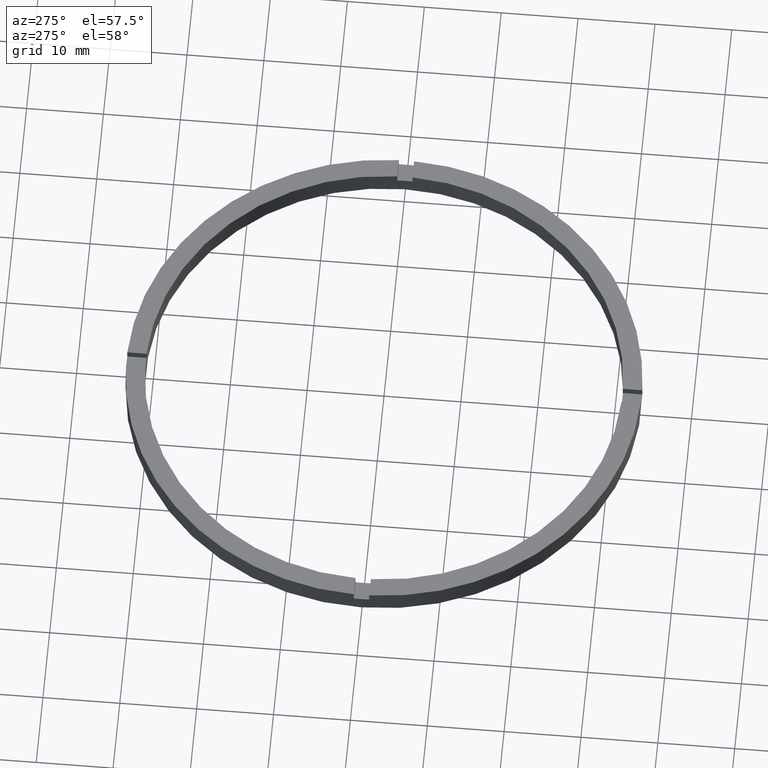
[diagram: clean part render]
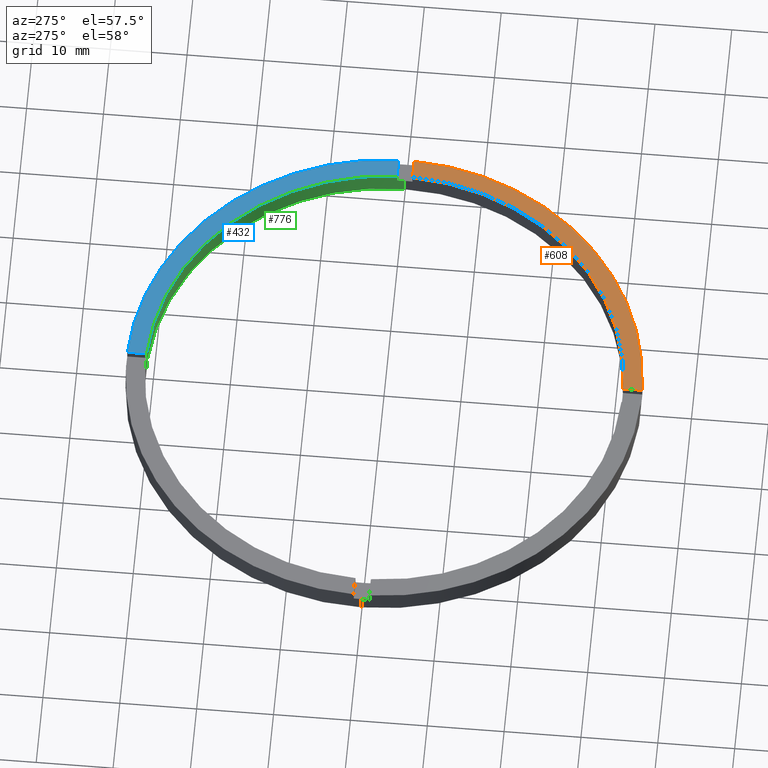
[diagram: same view with three faces highlighted in distinct colors, each labeled with its STEP entity id]
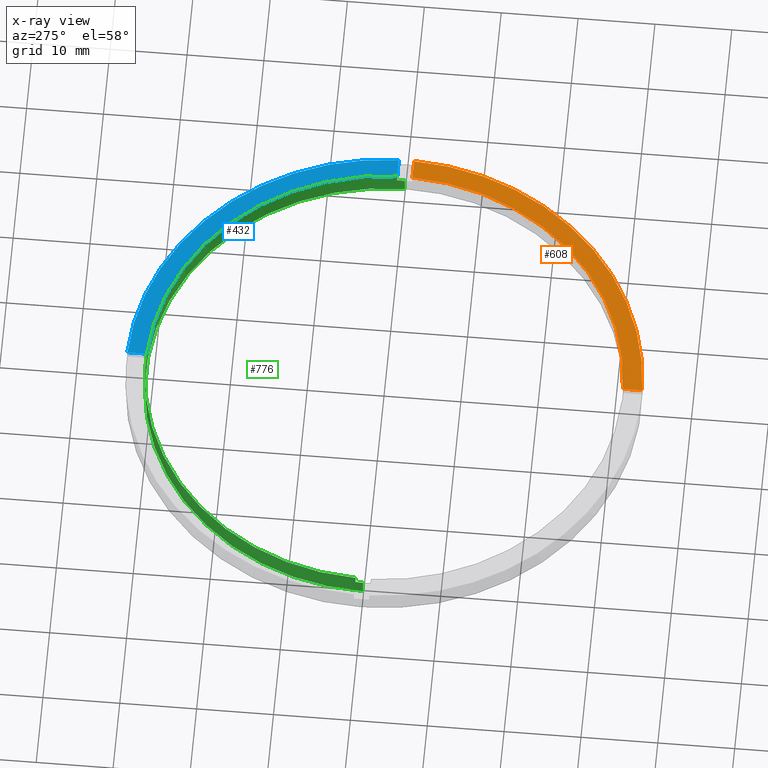
[diagram: x-ray of the same camera — body ghosted, the three highlighted faces saturated]
A machine part, auxiliary view with three faces highlighted in distinct colors.
The next image is the same camera in x-ray (body ghosted, the three faces saturated) — at least one of them is partly hidden behind the body in this view.
Their STEP definitions:

[orange] entity #608 — the highlighted planar face has unit normal (0, 0, 1).
#2 = AXIS2_PLACEMENT_3D ( 'NONE', #455, #492, #459 ) ;
#19 = VERTEX_POINT ( 'NONE', #437 ) ;
#33 = VERTEX_POINT ( 'NONE', #180 ) ;
#42 = LINE ( 'NONE', #249, #68 ) ;
#65 = LINE ( 'NONE', #540, #706 ) ;
#68 = VECTOR ( 'NONE', #466, 1000.000000000000000 ) ;
#85 = DIRECTION ( 'NONE',  ( -1.301042606982605074E-16, 1.000000000000000000, -0.000000000000000000 ) ) ;
#90 = AXIS2_PLACEMENT_3D ( 'NONE', #257, #553, #172 ) ;
#119 = VERTEX_POINT ( 'NONE', #275 ) ;
#122 = ORIENTED_EDGE ( 'NONE', *, *, #206, .F. ) ;
#149 = CIRCLE ( 'NONE', #612, 31.00000000000000000 ) ;
#172 = DIRECTION ( 'NONE',  ( 1.000000000000000000, 0.000000000000000000, 0.000000000000000000 ) ) ;
#180 = CARTESIAN_POINT ( 'NONE',  ( 33.48507130050644065, -1.000000000000158318, 3.000000000000000000 ) ) ;
#183 = EDGE_CURVE ( 'NONE', #119, #33, #396, .T. ) ;
#206 = EDGE_CURVE ( 'NONE', #305, #33, #42, .T. ) ;
#216 = CARTESIAN_POINT ( 'NONE',  ( 0.000000000000000000, 0.000000000000000000, 3.000000000000000000 ) ) ;
#237 = CARTESIAN_POINT ( 'NONE',  ( 30.98386676965932907, -1.000000000000158540, 3.000000000000000000 ) ) ;
#249 = CARTESIAN_POINT ( 'NONE',  ( 23.49999999999999289, -1.000000000000158984, 3.000000000000000000 ) ) ;
#256 = FACE_OUTER_BOUND ( 'NONE', #405, .T. ) ;
#257 = CARTESIAN_POINT ( 'NONE',  ( 0.000000000000000000, 0.000000000000000000, 3.000000000000000000 ) ) ;
#275 = CARTESIAN_POINT ( 'NONE',  ( 0.9999999999998391287, -33.48507130050644776, 3.000000000000000000 ) ) ;
#305 = VERTEX_POINT ( 'NONE', #237 ) ;
#337 = DIRECTION ( 'NONE',  ( 0.000000000000000000, 0.000000000000000000, 1.000000000000000000 ) ) ;
#351 = EDGE_CURVE ( 'NONE', #119, #19, #65, .T. ) ;
#396 = CIRCLE ( 'NONE', #90, 33.50000000000000000 ) ;
#404 = PLANE ( 'NONE',  #2 ) ;
#405 = EDGE_LOOP ( 'NONE', ( #122, #409, #410, #600 ) ) ;
#409 = ORIENTED_EDGE ( 'NONE', *, *, #467, .F. ) ;
#410 = ORIENTED_EDGE ( 'NONE', *, *, #351, .F. ) ;
#437 = CARTESIAN_POINT ( 'NONE',  ( 0.9999999999998389066, -30.98386676965933972, 3.000000000000000000 ) ) ;
#455 = CARTESIAN_POINT ( 'NONE',  ( 0.000000000000000000, 0.000000000000000000, 3.000000000000000000 ) ) ;
#459 = DIRECTION ( 'NONE',  ( 1.000000000000000000, 0.000000000000000000, -0.000000000000000000 ) ) ;
#466 = DIRECTION ( 'NONE',  ( 1.000000000000000000, 6.505213034913025371E-17, 0.000000000000000000 ) ) ;
#467 = EDGE_CURVE ( 'NONE', #19, #305, #149, .T. ) ;
#492 = DIRECTION ( 'NONE',  ( 0.000000000000000000, 0.000000000000000000, 1.000000000000000000 ) ) ;
#507 = DIRECTION ( 'NONE',  ( 1.000000000000000000, 0.000000000000000000, 0.000000000000000000 ) ) ;
#540 = CARTESIAN_POINT ( 'NONE',  ( 0.9999999999998377964, -23.50000000000018119, 3.000000000000000000 ) ) ;
#553 = DIRECTION ( 'NONE',  ( 0.000000000000000000, 0.000000000000000000, 1.000000000000000000 ) ) ;
#600 = ORIENTED_EDGE ( 'NONE', *, *, #183, .T. ) ;
#608 = ADVANCED_FACE ( 'NONE', ( #256 ), #404, .T. ) ;
#612 = AXIS2_PLACEMENT_3D ( 'NONE', #216, #337, #507 ) ;
#706 = VECTOR ( 'NONE', #85, 1000.000000000000000 ) ;

[blue] entity #432 — the highlighted planar face has unit normal (0, 0, 1).
#12 = CARTESIAN_POINT ( 'NONE',  ( 0.000000000000000000, 0.000000000000000000, 3.000000000000000000 ) ) ;
#40 = AXIS2_PLACEMENT_3D ( 'NONE', #116, #269, #658 ) ;
#53 = CARTESIAN_POINT ( 'NONE',  ( 23.49999999999999289, 0.9999999999998411271, 3.000000000000000000 ) ) ;
#54 = VERTEX_POINT ( 'NONE', #666 ) ;
#78 = EDGE_CURVE ( 'NONE', #460, #581, #650, .T. ) ;
#102 = VECTOR ( 'NONE', #220, 1000.000000000000000 ) ;
#106 = EDGE_CURVE ( 'NONE', #54, #281, #389, .T. ) ;
#116 = CARTESIAN_POINT ( 'NONE',  ( 0.000000000000000000, 0.000000000000000000, 3.000000000000000000 ) ) ;
#118 = ORIENTED_EDGE ( 'NONE', *, *, #677, .T. ) ;
#137 = VECTOR ( 'NONE', #263, 1000.000000000000000 ) ;
#143 = DIRECTION ( 'NONE',  ( 1.000000000000000000, 0.000000000000000000, -0.000000000000000000 ) ) ;
#158 = CARTESIAN_POINT ( 'NONE',  ( 33.48507130050644776, 0.9999999999998416822, 3.000000000000000000 ) ) ;
#218 = CARTESIAN_POINT ( 'NONE',  ( 0.000000000000000000, 0.000000000000000000, 3.000000000000000000 ) ) ;
#220 = DIRECTION ( 'NONE',  ( -1.000000000000000000, -6.505213034913025371E-17, -0.000000000000000000 ) ) ;
#239 = PLANE ( 'NONE',  #741 ) ;
#245 = CARTESIAN_POINT ( 'NONE',  ( 30.98386676965933972, 0.9999999999998414602, 3.000000000000000000 ) ) ;
#263 = DIRECTION ( 'NONE',  ( 0.000000000000000000, 1.000000000000000000, 0.000000000000000000 ) ) ;
#269 = DIRECTION ( 'NONE',  ( 0.000000000000000000, 0.000000000000000000, 1.000000000000000000 ) ) ;
#281 = VERTEX_POINT ( 'NONE', #598 ) ;
#363 = ORIENTED_EDGE ( 'NONE', *, *, #106, .F. ) ;
#389 = LINE ( 'NONE', #710, #137 ) ;
#432 = ADVANCED_FACE ( 'NONE', ( #496 ), #239, .T. ) ;
#460 = VERTEX_POINT ( 'NONE', #158 ) ;
#462 = EDGE_LOOP ( 'NONE', ( #363, #712, #626, #118 ) ) ;
#496 = FACE_OUTER_BOUND ( 'NONE', #462, .T. ) ;
#513 = DIRECTION ( 'NONE',  ( 0.000000000000000000, 0.000000000000000000, 1.000000000000000000 ) ) ;
#532 = CIRCLE ( 'NONE', #40, 33.50000000000000000 ) ;
#581 = VERTEX_POINT ( 'NONE', #245 ) ;
#591 = DIRECTION ( 'NONE',  ( 1.000000000000000000, 0.000000000000000000, 0.000000000000000000 ) ) ;
#598 = CARTESIAN_POINT ( 'NONE',  ( 0.9999999999999753530, 33.48507130050644776, 3.000000000000000000 ) ) ;
#618 = AXIS2_PLACEMENT_3D ( 'NONE', #218, #513, #591 ) ;
#626 = ORIENTED_EDGE ( 'NONE', *, *, #78, .F. ) ;
#650 = LINE ( 'NONE', #53, #102 ) ;
#658 = DIRECTION ( 'NONE',  ( 1.000000000000000000, 0.000000000000000000, 0.000000000000000000 ) ) ;
#666 = CARTESIAN_POINT ( 'NONE',  ( 0.9999999999999753530, 30.98386676965933617, 3.000000000000000000 ) ) ;
#676 = EDGE_CURVE ( 'NONE', #581, #54, #779, .T. ) ;
#677 = EDGE_CURVE ( 'NONE', #460, #281, #532, .T. ) ;
#710 = CARTESIAN_POINT ( 'NONE',  ( 0.9999999999999753530, 23.50000000000000000, 3.000000000000000000 ) ) ;
#712 = ORIENTED_EDGE ( 'NONE', *, *, #676, .F. ) ;
#731 = DIRECTION ( 'NONE',  ( 0.000000000000000000, 0.000000000000000000, 1.000000000000000000 ) ) ;
#741 = AXIS2_PLACEMENT_3D ( 'NONE', #12, #731, #143 ) ;
#779 = CIRCLE ( 'NONE', #618, 31.00000000000000000 ) ;

[green] entity #776 — the highlighted cylindrical surface (partial cylindrical patch) has radius 31 mm, axis along (-0, -0, -1).
#5 = CARTESIAN_POINT ( 'NONE',  ( 31.00000000000000000, 3.796405077356795115E-15, 3.000000000000000000 ) ) ;
#9 = DIRECTION ( 'NONE',  ( 0.000000000000000000, 0.000000000000000000, 1.000000000000000000 ) ) ;
#23 = ORIENTED_EDGE ( 'NONE', *, *, #121, .F. ) ;
#51 = AXIS2_PLACEMENT_3D ( 'NONE', #498, #468, #560 ) ;
#54 = VERTEX_POINT ( 'NONE', #666 ) ;
#61 = ORIENTED_EDGE ( 'NONE', *, *, #217, .T. ) ;
#70 = EDGE_CURVE ( 'NONE', #407, #558, #101, .T. ) ;
#72 = DIRECTION ( 'NONE',  ( 0.000000000000000000, -0.000000000000000000, 1.000000000000000000 ) ) ;
#82 = ORIENTED_EDGE ( 'NONE', *, *, #676, .T. ) ;
#86 = ORIENTED_EDGE ( 'NONE', *, *, #489, .F. ) ;
#92 = CARTESIAN_POINT ( 'NONE',  ( 0.9999999999999753530, 30.98386676965933617, 2.000000000000000000 ) ) ;
#97 = CARTESIAN_POINT ( 'NONE',  ( 30.98386676965933972, 0.9999999999998414602, 2.000000000000000000 ) ) ;
#101 = LINE ( 'NONE', #719, #382 ) ;
#104 = CARTESIAN_POINT ( 'NONE',  ( -30.98386676965933617, 0.9999999999999740208, 3.000000000000000000 ) ) ;
#110 = VERTEX_POINT ( 'NONE', #282 ) ;
#121 = EDGE_CURVE ( 'NONE', #633, #54, #359, .T. ) ;
#124 = CARTESIAN_POINT ( 'NONE',  ( 0.000000000000000000, 0.000000000000000000, 3.000000000000000000 ) ) ;
#128 = VERTEX_POINT ( 'NONE', #469 ) ;
#132 = VERTEX_POINT ( 'NONE', #586 ) ;
#139 = VECTOR ( 'NONE', #655, 1000.000000000000000 ) ;
#151 = ORIENTED_EDGE ( 'NONE', *, *, #212, .T. ) ;
#154 = VERTEX_POINT ( 'NONE', #594 ) ;
#174 = DIRECTION ( 'NONE',  ( 0.000000000000000000, 0.000000000000000000, 1.000000000000000000 ) ) ;
#179 = CARTESIAN_POINT ( 'NONE',  ( 0.9999999999999753530, 30.98386676965933617, 3.000000000000000000 ) ) ;
#190 = EDGE_CURVE ( 'NONE', #128, #110, #418, .T. ) ;
#196 = VERTEX_POINT ( 'NONE', #211 ) ;
#208 = CARTESIAN_POINT ( 'NONE',  ( 30.98386676965933972, 0.9999999999998414602, 3.000000000000000000 ) ) ;
#211 = CARTESIAN_POINT ( 'NONE',  ( 31.00000000000000000, 3.796405077356795115E-15, 0.000000000000000000 ) ) ;
#212 = EDGE_CURVE ( 'NONE', #402, #559, #323, .T. ) ;
#217 = EDGE_CURVE ( 'NONE', #154, #407, #316, .T. ) ;
#218 = CARTESIAN_POINT ( 'NONE',  ( 0.000000000000000000, 0.000000000000000000, 3.000000000000000000 ) ) ;
#228 = DIRECTION ( 'NONE',  ( 1.000000000000000000, 0.000000000000000000, 0.000000000000000000 ) ) ;
#233 = VECTOR ( 'NONE', #738, 1000.000000000000000 ) ;
#238 = DIRECTION ( 'NONE',  ( -0.000000000000000000, -0.000000000000000000, -1.000000000000000000 ) ) ;
#242 = DIRECTION ( 'NONE',  ( -0.000000000000000000, -0.000000000000000000, -1.000000000000000000 ) ) ;
#245 = CARTESIAN_POINT ( 'NONE',  ( 30.98386676965933972, 0.9999999999998414602, 3.000000000000000000 ) ) ;
#254 = CYLINDRICAL_SURFACE ( 'NONE', #381, 31.00000000000000000 ) ;
#264 = LINE ( 'NONE', #104, #518 ) ;
#268 = FACE_OUTER_BOUND ( 'NONE', #297, .T. ) ;
#271 = DIRECTION ( 'NONE',  ( 0.000000000000000000, 0.000000000000000000, 1.000000000000000000 ) ) ;
#277 = AXIS2_PLACEMENT_3D ( 'NONE', #684, #72, #228 ) ;
#282 = CARTESIAN_POINT ( 'NONE',  ( -30.98386676965933617, 0.9999999999999740208, 3.000000000000000000 ) ) ;
#297 = EDGE_LOOP ( 'NONE', ( #86, #151, #342, #82, #23, #634, #659, #614, #657, #61, #631, #580 ) ) ;
#307 = LINE ( 'NONE', #609, #577 ) ;
#316 = CIRCLE ( 'NONE', #51, 31.00000000000000000 ) ;
#323 = CIRCLE ( 'NONE', #729, 31.00000000000000000 ) ;
#327 = CARTESIAN_POINT ( 'NONE',  ( -31.00000000000000000, 0.000000000000000000, 0.000000000000000000 ) ) ;
#330 = EDGE_CURVE ( 'NONE', #128, #132, #307, .T. ) ;
#342 = ORIENTED_EDGE ( 'NONE', *, *, #424, .F. ) ;
#359 = LINE ( 'NONE', #179, #139 ) ;
#381 = AXIS2_PLACEMENT_3D ( 'NONE', #124, #238, #438 ) ;
#382 = VECTOR ( 'NONE', #756, 1000.000000000000000 ) ;
#391 = AXIS2_PLACEMENT_3D ( 'NONE', #708, #9, #423 ) ;
#402 = VERTEX_POINT ( 'NONE', #447 ) ;
#407 = VERTEX_POINT ( 'NONE', #675 ) ;
#418 = CIRCLE ( 'NONE', #391, 31.00000000000000000 ) ;
#423 = DIRECTION ( 'NONE',  ( 1.000000000000000000, 0.000000000000000000, 0.000000000000000000 ) ) ;
#424 = EDGE_CURVE ( 'NONE', #581, #559, #494, .T. ) ;
#427 = DIRECTION ( 'NONE',  ( 1.000000000000000000, 0.000000000000000000, 0.000000000000000000 ) ) ;
#438 = DIRECTION ( 'NONE',  ( -1.000000000000000000, 0.000000000000000000, 0.000000000000000000 ) ) ;
#447 = CARTESIAN_POINT ( 'NONE',  ( 31.00000000000000000, 3.796405077356795115E-15, 2.000000000000000000 ) ) ;
#461 = DIRECTION ( 'NONE',  ( 1.000000000000000000, 0.000000000000000000, 0.000000000000000000 ) ) ;
#468 = DIRECTION ( 'NONE',  ( 0.000000000000000000, 0.000000000000000000, 1.000000000000000000 ) ) ;
#469 = CARTESIAN_POINT ( 'NONE',  ( -1.000000000000024647, 30.98386676965933617, 3.000000000000000000 ) ) ;
#489 = EDGE_CURVE ( 'NONE', #402, #196, #745, .T. ) ;
#490 = VECTOR ( 'NONE', #242, 1000.000000000000000 ) ;
#494 = LINE ( 'NONE', #208, #233 ) ;
#498 = CARTESIAN_POINT ( 'NONE',  ( 0.000000000000000000, 0.000000000000000000, 2.000000000000000000 ) ) ;
#512 = CIRCLE ( 'NONE', #277, 31.00000000000000000 ) ;
#513 = DIRECTION ( 'NONE',  ( 0.000000000000000000, 0.000000000000000000, 1.000000000000000000 ) ) ;
#518 = VECTOR ( 'NONE', #174, 1000.000000000000000 ) ;
#528 = CIRCLE ( 'NONE', #770, 31.00000000000000000 ) ;
#534 = DIRECTION ( 'NONE',  ( -0.000000000000000000, -0.000000000000000000, -1.000000000000000000 ) ) ;
#558 = VERTEX_POINT ( 'NONE', #327 ) ;
#559 = VERTEX_POINT ( 'NONE', #97 ) ;
#560 = DIRECTION ( 'NONE',  ( 1.000000000000000000, 0.000000000000000000, 0.000000000000000000 ) ) ;
#576 = CARTESIAN_POINT ( 'NONE',  ( 0.000000000000000000, 0.000000000000000000, 2.000000000000000000 ) ) ;
#577 = VECTOR ( 'NONE', #534, 1000.000000000000000 ) ;
#580 = ORIENTED_EDGE ( 'NONE', *, *, #606, .F. ) ;
#581 = VERTEX_POINT ( 'NONE', #245 ) ;
#586 = CARTESIAN_POINT ( 'NONE',  ( -1.000000000000024647, 30.98386676965933617, 2.000000000000000000 ) ) ;
#591 = DIRECTION ( 'NONE',  ( 1.000000000000000000, 0.000000000000000000, 0.000000000000000000 ) ) ;
#594 = CARTESIAN_POINT ( 'NONE',  ( -30.98386676965933617, 0.9999999999999740208, 2.000000000000000000 ) ) ;
#606 = EDGE_CURVE ( 'NONE', #196, #558, #528, .T. ) ;
#609 = CARTESIAN_POINT ( 'NONE',  ( -1.000000000000024647, 30.98386676965933617, 3.000000000000000000 ) ) ;
#614 = ORIENTED_EDGE ( 'NONE', *, *, #190, .T. ) ;
#618 = AXIS2_PLACEMENT_3D ( 'NONE', #218, #513, #591 ) ;
#631 = ORIENTED_EDGE ( 'NONE', *, *, #70, .T. ) ;
#633 = VERTEX_POINT ( 'NONE', #92 ) ;
#634 = ORIENTED_EDGE ( 'NONE', *, *, #736, .T. ) ;
#655 = DIRECTION ( 'NONE',  ( 0.000000000000000000, 0.000000000000000000, 1.000000000000000000 ) ) ;
#657 = ORIENTED_EDGE ( 'NONE', *, *, #673, .F. ) ;
#659 = ORIENTED_EDGE ( 'NONE', *, *, #330, .F. ) ;
#666 = CARTESIAN_POINT ( 'NONE',  ( 0.9999999999999753530, 30.98386676965933617, 3.000000000000000000 ) ) ;
#673 = EDGE_CURVE ( 'NONE', #154, #110, #264, .T. ) ;
#675 = CARTESIAN_POINT ( 'NONE',  ( -31.00000000000000000, 0.000000000000000000, 2.000000000000000000 ) ) ;
#676 = EDGE_CURVE ( 'NONE', #581, #54, #779, .T. ) ;
#684 = CARTESIAN_POINT ( 'NONE',  ( 0.000000000000000000, 0.000000000000000000, 2.000000000000000000 ) ) ;
#708 = CARTESIAN_POINT ( 'NONE',  ( 0.000000000000000000, 0.000000000000000000, 3.000000000000000000 ) ) ;
#719 = CARTESIAN_POINT ( 'NONE',  ( -31.00000000000000000, 0.000000000000000000, 3.000000000000000000 ) ) ;
#729 = AXIS2_PLACEMENT_3D ( 'NONE', #576, #271, #427 ) ;
#736 = EDGE_CURVE ( 'NONE', #633, #132, #512, .T. ) ;
#737 = DIRECTION ( 'NONE',  ( 0.000000000000000000, 0.000000000000000000, 1.000000000000000000 ) ) ;
#738 = DIRECTION ( 'NONE',  ( -0.000000000000000000, -0.000000000000000000, -1.000000000000000000 ) ) ;
#745 = LINE ( 'NONE', #5, #490 ) ;
#756 = DIRECTION ( 'NONE',  ( -0.000000000000000000, -0.000000000000000000, -1.000000000000000000 ) ) ;
#770 = AXIS2_PLACEMENT_3D ( 'NONE', #780, #737, #461 ) ;
#776 = ADVANCED_FACE ( 'NONE', ( #268 ), #254, .F. ) ;
#779 = CIRCLE ( 'NONE', #618, 31.00000000000000000 ) ;
#780 = CARTESIAN_POINT ( 'NONE',  ( 0.000000000000000000, 0.000000000000000000, 0.000000000000000000 ) ) ;